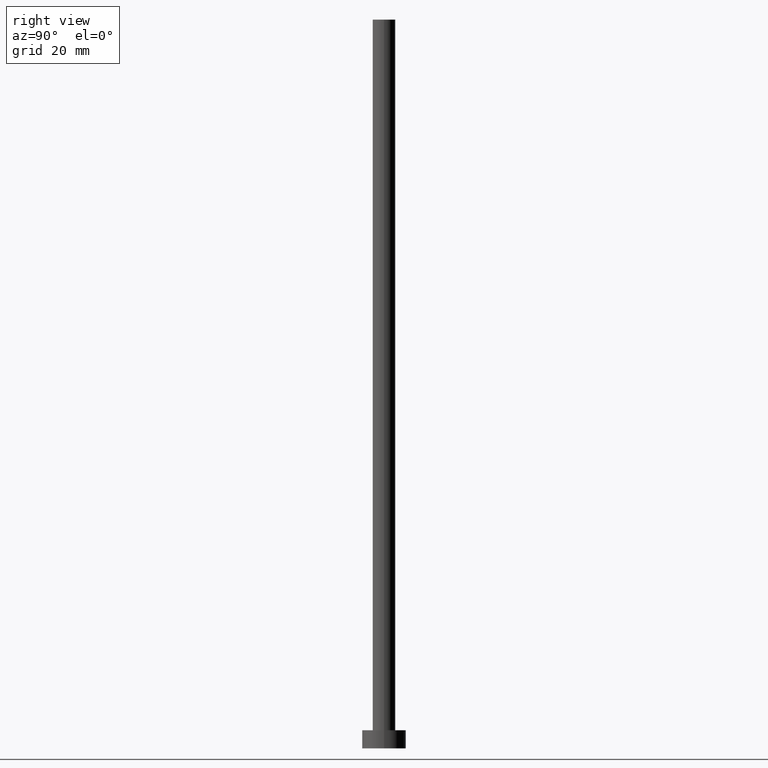
[diagram: clean part render]
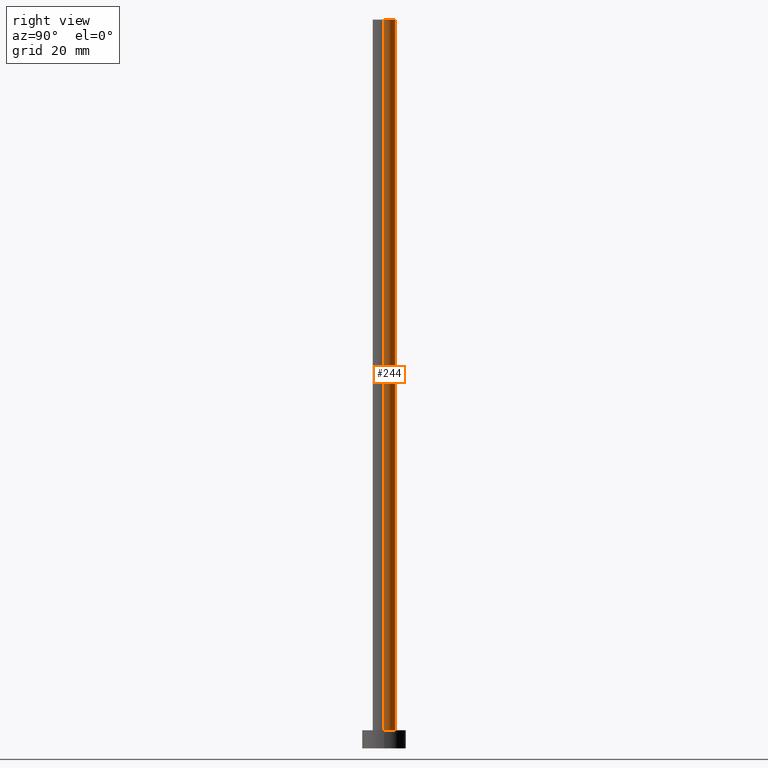
[diagram: same view with one face highlighted and labeled with its STEP entity id]
A machine part, right view. The second image highlights one B-rep face of the part: STEP entity #244.
In plain terms, the highlighted cylindrical surface (edge-blend (fillet) strip) has radius 3.1 mm, axis along (-0, -0, -1).
Its self-contained STEP definition (entity closure, byte-faithful):
#1 = LINE ( 'NONE', #76, #29 ) ;
#2 = DIRECTION ( 'NONE',  ( -0.000000000000000000, -0.000000000000000000, -1.000000000000000000 ) ) ;
#5 = CARTESIAN_POINT ( 'NONE',  ( 0.000000000000000000, 0.000000000000000000, 200.0000000000000000 ) ) ;
#6 = CARTESIAN_POINT ( 'NONE',  ( -3.100000000000000089, 0.000000000000000000, 5.000000000000000000 ) ) ;
#22 = DIRECTION ( 'NONE',  ( 1.000000000000000000, 0.000000000000000000, 0.000000000000000000 ) ) ;
#24 = DIRECTION ( 'NONE',  ( 1.000000000000000000, 0.000000000000000000, 0.000000000000000000 ) ) ;
#29 = VECTOR ( 'NONE', #236, 1000.000000000000000 ) ;
#40 = FACE_OUTER_BOUND ( 'NONE', #62, .T. ) ;
#52 = CARTESIAN_POINT ( 'NONE',  ( -3.100000000000000089, 0.000000000000000000, 200.0000000000000000 ) ) ;
#62 = EDGE_LOOP ( 'NONE', ( #187, #66, #110, #225 ) ) ;
#66 = ORIENTED_EDGE ( 'NONE', *, *, #157, .T. ) ;
#76 = CARTESIAN_POINT ( 'NONE',  ( -3.100000000000000089, 0.000000000000000000, 200.0000000000000000 ) ) ;
#77 = CARTESIAN_POINT ( 'NONE',  ( 3.100000000000000089, 3.796405077356794918E-16, 5.000000000000000000 ) ) ;
#108 = VECTOR ( 'NONE', #2, 1000.000000000000000 ) ;
#110 = ORIENTED_EDGE ( 'NONE', *, *, #180, .T. ) ;
#118 = AXIS2_PLACEMENT_3D ( 'NONE', #222, #224, #177 ) ;
#121 = CARTESIAN_POINT ( 'NONE',  ( 3.100000000000000089, 3.796405077356794918E-16, 200.0000000000000000 ) ) ;
#146 = VERTEX_POINT ( 'NONE', #52 ) ;
#150 = DIRECTION ( 'NONE',  ( 0.000000000000000000, 0.000000000000000000, 1.000000000000000000 ) ) ;
#155 = CIRCLE ( 'NONE', #199, 3.100000000000000089 ) ;
#157 = EDGE_CURVE ( 'NONE', #160, #164, #217, .T. ) ;
#160 = VERTEX_POINT ( 'NONE', #121 ) ;
#164 = VERTEX_POINT ( 'NONE', #77 ) ;
#171 = DIRECTION ( 'NONE',  ( 0.000000000000000000, 0.000000000000000000, 1.000000000000000000 ) ) ;
#175 = EDGE_CURVE ( 'NONE', #160, #146, #176, .T. ) ;
#176 = CIRCLE ( 'NONE', #234, 3.100000000000000089 ) ;
#177 = DIRECTION ( 'NONE',  ( -1.000000000000000000, 0.000000000000000000, 0.000000000000000000 ) ) ;
#180 = EDGE_CURVE ( 'NONE', #164, #227, #155, .T. ) ;
#187 = ORIENTED_EDGE ( 'NONE', *, *, #175, .F. ) ;
#193 = CARTESIAN_POINT ( 'NONE',  ( 0.000000000000000000, 0.000000000000000000, 5.000000000000000000 ) ) ;
#196 = EDGE_CURVE ( 'NONE', #146, #227, #1, .T. ) ;
#199 = AXIS2_PLACEMENT_3D ( 'NONE', #193, #171, #22 ) ;
#200 = CYLINDRICAL_SURFACE ( 'NONE', #118, 3.100000000000000089 ) ;
#217 = LINE ( 'NONE', #239, #108 ) ;
#222 = CARTESIAN_POINT ( 'NONE',  ( 0.000000000000000000, 0.000000000000000000, 200.0000000000000000 ) ) ;
#224 = DIRECTION ( 'NONE',  ( -0.000000000000000000, -0.000000000000000000, -1.000000000000000000 ) ) ;
#225 = ORIENTED_EDGE ( 'NONE', *, *, #196, .F. ) ;
#227 = VERTEX_POINT ( 'NONE', #6 ) ;
#234 = AXIS2_PLACEMENT_3D ( 'NONE', #5, #150, #24 ) ;
#236 = DIRECTION ( 'NONE',  ( -0.000000000000000000, -0.000000000000000000, -1.000000000000000000 ) ) ;
#239 = CARTESIAN_POINT ( 'NONE',  ( 3.100000000000000089, 3.796405077356794918E-16, 200.0000000000000000 ) ) ;
#244 = ADVANCED_FACE ( 'NONE', ( #40 ), #200, .T. ) ;